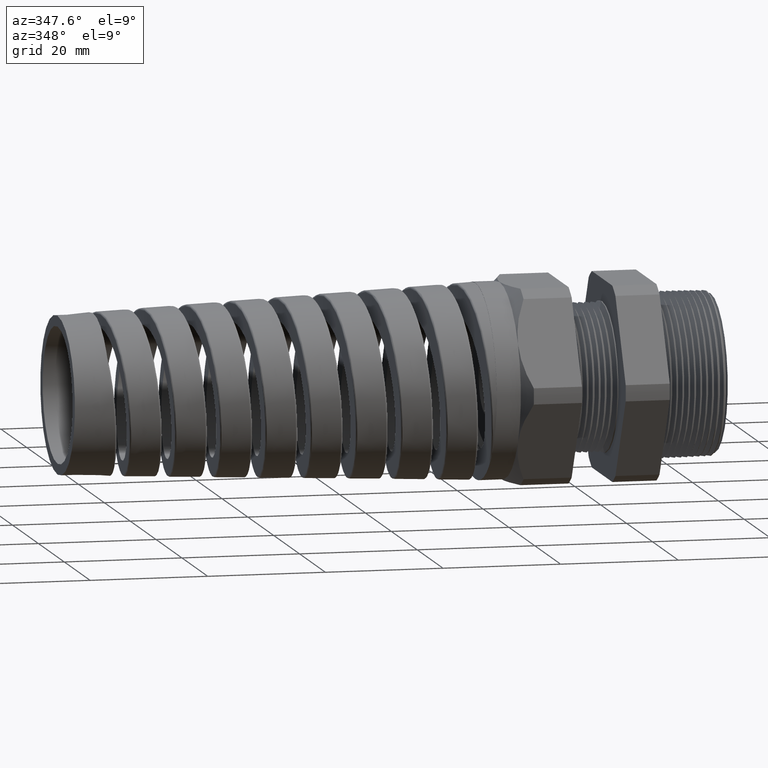
[diagram: clean part render]
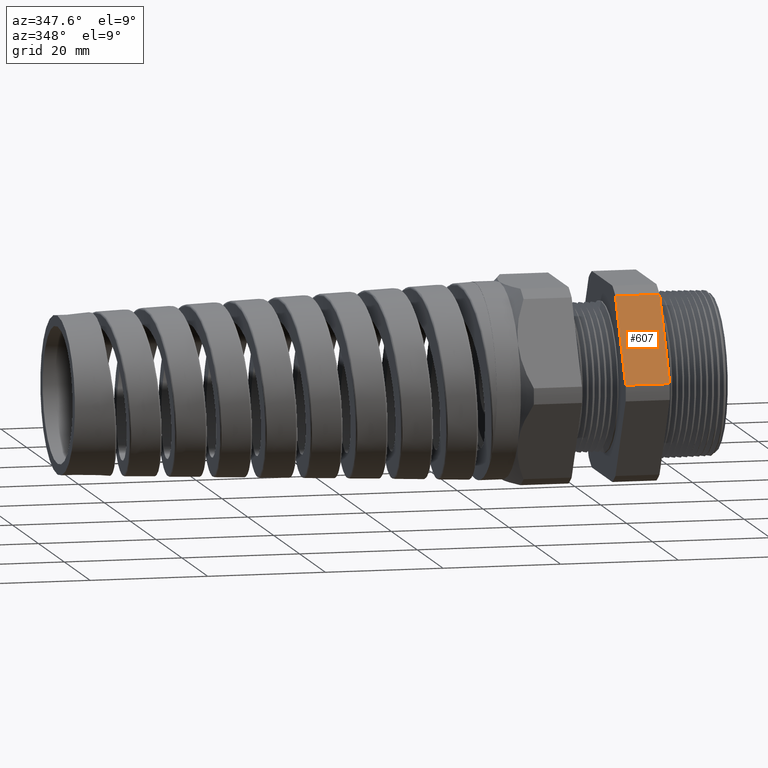
[diagram: same view with one face highlighted and labeled with its STEP entity id]
A machine part, auxiliary view. The second image highlights one B-rep face of the part: STEP entity #607.
In plain terms, the highlighted planar face has unit normal (0, -0.866, 0.5).
Its self-contained STEP definition (entity closure, byte-faithful):
#582 = ORIENTED_EDGE ( 'NONE', *, *, #584, .T. ) ;
#584 = EDGE_CURVE ( 'NONE', #2469, #585, #3508, .T. ) ;
#585 = VERTEX_POINT ( 'NONE', #3504 ) ;
#586 = ORIENTED_EDGE ( 'NONE', *, *, #587, .F. ) ;
#587 = EDGE_CURVE ( 'NONE', #604, #585, #3503, .T. ) ;
#603 = EDGE_CURVE ( 'NONE', #2473, #604, #3550, .T. ) ;
#604 = VERTEX_POINT ( 'NONE', #3541 ) ;
#607 = ADVANCED_FACE ( 'NONE', ( #3540 ), #3598, .T. ) ;
#608 = EDGE_LOOP ( 'NONE', ( #664, #665, #582, #586 ) ) ;
#664 = ORIENTED_EDGE ( 'NONE', *, *, #603, .F. ) ;
#665 = ORIENTED_EDGE ( 'NONE', *, *, #2475, .F. ) ;
#2469 = VERTEX_POINT ( 'NONE', #13636 ) ;
#2473 = VERTEX_POINT ( 'NONE', #13692 ) ;
#2475 = EDGE_CURVE ( 'NONE', #2469, #2473, #13686, .T. ) ;
#3501 = DIRECTION ( 'NONE',  ( 0.0000000000000000000, 0.4999999999999997200, 0.8660254037844388200 ) ) ;
#3502 = CARTESIAN_POINT ( 'NONE',  ( -0.6052755905511809600, -0.2379165124598855400, 0.8879165124598847900 ) ) ;
#3503 = LINE ( 'NONE', #3502, #3566 ) ;
#3504 = CARTESIAN_POINT ( 'NONE',  ( -0.6052755905511810800, -0.4063420493440885700, 0.5961949252843791200 ) ) ;
#3505 = DIRECTION ( 'NONE',  ( -1.000000000000000000, 0.0000000000000000000, 0.0000000000000000000 ) ) ;
#3506 = VECTOR ( 'NONE', #3505, 39.37007874015748100 ) ;
#3507 = CARTESIAN_POINT ( 'NONE',  ( 0.1200000000000000900, -0.4063420493440885700, 0.5961949252843791200 ) ) ;
#3508 = LINE ( 'NONE', #3507, #3506 ) ;
#3540 = FACE_OUTER_BOUND ( 'NONE', #608, .T. ) ;
#3541 = CARTESIAN_POINT ( 'NONE',  ( -0.6052755905511810800, -0.7194909755756820900, 0.05380507471562026600 ) ) ;
#3542 = DIRECTION ( 'NONE',  ( -1.000000000000000000, 0.0000000000000000000, 0.0000000000000000000 ) ) ;
#3543 = VECTOR ( 'NONE', #3542, 39.37007874015748100 ) ;
#3544 = CARTESIAN_POINT ( 'NONE',  ( 0.1200000000000000900, -0.7194909755756820900, 0.05380507471562026600 ) ) ;
#3550 = LINE ( 'NONE', #3544, #3543 ) ;
#3566 = VECTOR ( 'NONE', #3501, 39.37007874015748900 ) ;
#3594 = DIRECTION ( 'NONE',  ( 0.0000000000000000000, -0.4999999999999997200, -0.8660254037844388200 ) ) ;
#3595 = DIRECTION ( 'NONE',  ( 0.0000000000000000000, -0.8660254037844388200, 0.4999999999999997200 ) ) ;
#3596 = CARTESIAN_POINT ( 'NONE',  ( 0.1200000000000000900, -0.7194909755756819800, 0.05380507471562046700 ) ) ;
#3597 = AXIS2_PLACEMENT_3D ( 'NONE', #3596, #3595, #3594 ) ;
#3598 = PLANE ( 'NONE',  #3597 ) ;
#13636 = CARTESIAN_POINT ( 'NONE',  ( -0.3100000000000000000, -0.4063420493440885700, 0.5961949252843791200 ) ) ;
#13683 = DIRECTION ( 'NONE',  ( 0.0000000000000000000, -0.4999999999999997200, -0.8660254037844388200 ) ) ;
#13684 = VECTOR ( 'NONE', #13683, 39.37007874015748900 ) ;
#13685 = CARTESIAN_POINT ( 'NONE',  ( -0.3100000000000000000, -0.2379165124598855400, 0.8879165124598849000 ) ) ;
#13686 = LINE ( 'NONE', #13685, #13684 ) ;
#13692 = CARTESIAN_POINT ( 'NONE',  ( -0.3100000000000000000, -0.7194909755756820900, 0.05380507471562026600 ) ) ;